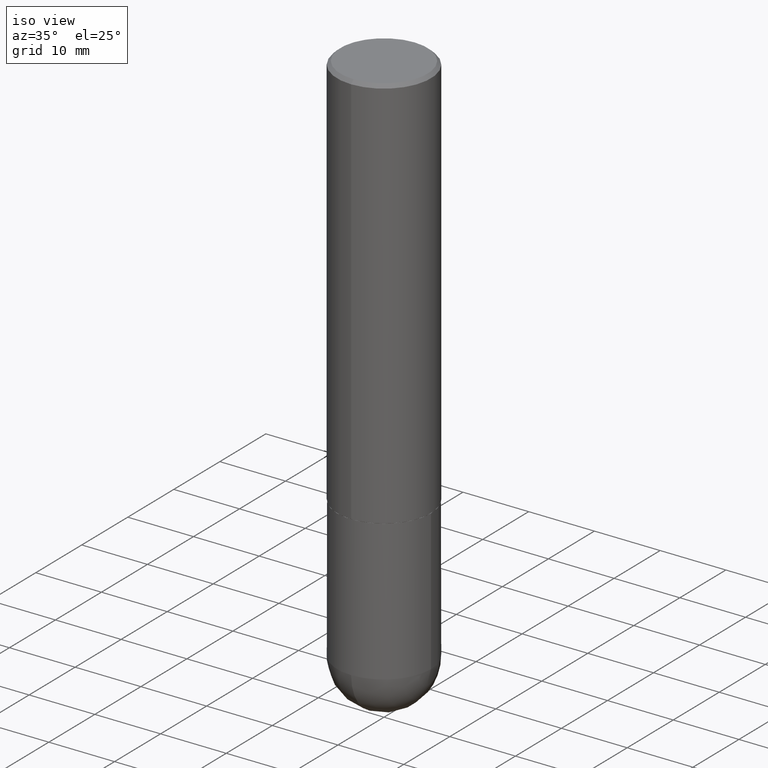
[diagram: clean part render]
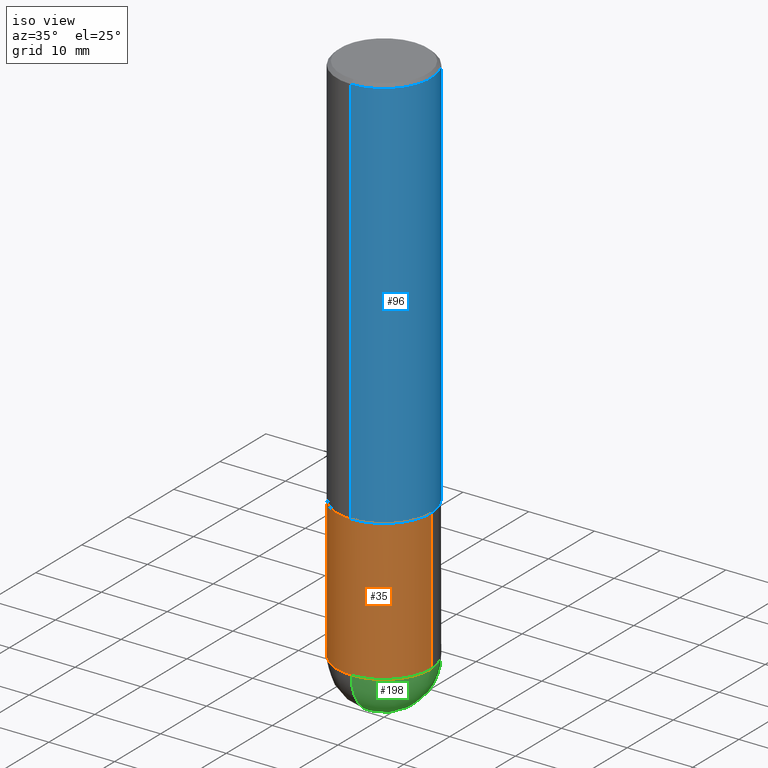
[diagram: same view with three faces highlighted in distinct colors, each labeled with its STEP entity id]
A machine part, iso view with three faces highlighted in distinct colors.
Their STEP definitions:

[orange] entity #35 — the highlighted cylindrical surface (partial cylindrical patch) has radius 7.1438 mm, axis along (-0, 0, 1).
#12 = AXIS2_PLACEMENT_3D ( 'NONE', #382, #92, #224 ) ;
#35 = ADVANCED_FACE ( 'NONE', ( #374 ), #157, .T. ) ;
#38 = CARTESIAN_POINT ( 'NONE',  ( -1.998401444325206042E-15, -0.2812500000000116573, -3.218749999999998668 ) ) ;
#57 = VERTEX_POINT ( 'NONE', #193 ) ;
#59 = DIRECTION ( 'NONE',  ( 1.000000000000000000, -6.982962677686269866E-15, 0.000000000000000000 ) ) ;
#71 = CARTESIAN_POINT ( 'NONE',  ( 0.2812500000000000000, -1.025622643285173184E-14, -2.374999999999999556 ) ) ;
#76 = VERTEX_POINT ( 'NONE', #38 ) ;
#81 = CARTESIAN_POINT ( 'NONE',  ( -0.2812500000000000555, 1.998401444325282167E-15, -1.383450494134192269E-29 ) ) ;
#92 = DIRECTION ( 'NONE',  ( -2.445468806185136597E-29, 3.491481338843145583E-15, 1.000000000000000000 ) ) ;
#95 = DIRECTION ( 'NONE',  ( 1.000000000000000000, -6.982962677686268288E-15, 0.000000000000000000 ) ) ;
#106 = EDGE_CURVE ( 'NONE', #241, #76, #294, .T. ) ;
#109 = CIRCLE ( 'NONE', #306, 0.2812500000000000000 ) ;
#110 = EDGE_CURVE ( 'NONE', #76, #57, #351, .T. ) ;
#114 = DIRECTION ( 'NONE',  ( -2.445468806185136877E-29, 3.491481338843145188E-15, 1.000000000000000000 ) ) ;
#116 = CARTESIAN_POINT ( 'NONE',  ( 0.2812500000000000555, -1.963958253099262907E-15, 1.371424718192607012E-29 ) ) ;
#122 = CARTESIAN_POINT ( 'NONE',  ( 5.807988414689698296E-29, -8.292268179752468540E-15, -2.374999999999999556 ) ) ;
#129 = CARTESIAN_POINT ( 'NONE',  ( 0.000000000000000000, 0.000000000000000000, 0.000000000000000000 ) ) ;
#133 = VECTOR ( 'NONE', #244, 39.37007874015748143 ) ;
#149 = AXIS2_PLACEMENT_3D ( 'NONE', #283, #153, #95 ) ;
#153 = DIRECTION ( 'NONE',  ( -2.445468806185136597E-29, 3.491481338843145583E-15, 1.000000000000000000 ) ) ;
#157 = CYLINDRICAL_SURFACE ( 'NONE', #245, 0.2812500000000000555 ) ;
#172 = ORIENTED_EDGE ( 'NONE', *, *, #291, .T. ) ;
#177 = DIRECTION ( 'NONE',  ( -2.445468806185136597E-29, 3.491481338843145583E-15, 1.000000000000000000 ) ) ;
#181 = ORIENTED_EDGE ( 'NONE', *, *, #106, .T. ) ;
#193 = CARTESIAN_POINT ( 'NONE',  ( 0.2812500000000000555, -1.172919512267618602E-14, -3.218749999999999556 ) ) ;
#199 = CARTESIAN_POINT ( 'NONE',  ( -0.2812500000000000555, -7.766835425251639371E-15, -3.218749999999999556 ) ) ;
#211 = VERTEX_POINT ( 'NONE', #71 ) ;
#224 = DIRECTION ( 'NONE',  ( 1.000000000000000000, -6.982962677686268288E-15, 0.000000000000000000 ) ) ;
#239 = LINE ( 'NONE', #81, #384 ) ;
#241 = VERTEX_POINT ( 'NONE', #199 ) ;
#244 = DIRECTION ( 'NONE',  ( -2.445468806185136877E-29, 3.491481338843145188E-15, 1.000000000000000000 ) ) ;
#245 = AXIS2_PLACEMENT_3D ( 'NONE', #129, #342, #247 ) ;
#247 = DIRECTION ( 'NONE',  ( 1.000000000000000000, -6.982962677686266711E-15, 4.876176775795935232E-29 ) ) ;
#262 = ORIENTED_EDGE ( 'NONE', *, *, #265, .F. ) ;
#265 = EDGE_CURVE ( 'NONE', #397, #211, #109, .T. ) ;
#270 = ORIENTED_EDGE ( 'NONE', *, *, #286, .F. ) ;
#283 = CARTESIAN_POINT ( 'NONE',  ( 7.871352719908407300E-29, -1.123820555940137375E-14, -3.218749999999999556 ) ) ;
#286 = EDGE_CURVE ( 'NONE', #241, #397, #239, .T. ) ;
#291 = EDGE_CURVE ( 'NONE', #57, #211, #330, .T. ) ;
#293 = EDGE_LOOP ( 'NONE', ( #270, #181, #399, #172, #262 ) ) ;
#294 = CIRCLE ( 'NONE', #12, 0.2812500000000000555 ) ;
#298 = CARTESIAN_POINT ( 'NONE',  ( -0.2812500000000000000, -7.766835425251637793E-15, -2.374999999999999556 ) ) ;
#306 = AXIS2_PLACEMENT_3D ( 'NONE', #122, #177, #59 ) ;
#330 = LINE ( 'NONE', #116, #133 ) ;
#342 = DIRECTION ( 'NONE',  ( -2.445468806185136597E-29, 3.491481338843145583E-15, 1.000000000000000000 ) ) ;
#351 = CIRCLE ( 'NONE', #149, 0.2812500000000000555 ) ;
#374 = FACE_OUTER_BOUND ( 'NONE', #293, .T. ) ;
#382 = CARTESIAN_POINT ( 'NONE',  ( 7.871352719908407300E-29, -1.123820555940137375E-14, -3.218749999999999556 ) ) ;
#384 = VECTOR ( 'NONE', #114, 39.37007874015748143 ) ;
#397 = VERTEX_POINT ( 'NONE', #298 ) ;
#399 = ORIENTED_EDGE ( 'NONE', *, *, #110, .T. ) ;

[blue] entity #96 — the highlighted cylindrical surface (partial cylindrical patch) has radius 7.1438 mm, axis along (-0, 0, 1).
#2 = CARTESIAN_POINT ( 'NONE',  ( 1.998401444325282167E-15, 0.2812500000000001110, -9.819798812686895501E-16 ) ) ;
#3 = EDGE_CURVE ( 'NONE', #22, #112, #256, .T. ) ;
#5 = EDGE_CURVE ( 'NONE', #404, #340, #375, .T. ) ;
#22 = VERTEX_POINT ( 'NONE', #66 ) ;
#47 = EDGE_CURVE ( 'NONE', #112, #340, #284, .T. ) ;
#54 = CARTESIAN_POINT ( 'NONE',  ( -1.963958253099263301E-15, -0.2812500000000001110, 9.819798812686895501E-16 ) ) ;
#66 = CARTESIAN_POINT ( 'NONE',  ( -1.963958253099205714E-15, -0.2812500000000085487, -2.373999999999998334 ) ) ;
#82 = AXIS2_PLACEMENT_3D ( 'NONE', #99, #349, #222 ) ;
#96 = ADVANCED_FACE ( 'NONE', ( #409 ), #253, .T. ) ;
#99 = CARTESIAN_POINT ( 'NONE',  ( 4.890933864690296280E-31, -6.982968044577367529E-17, -0.02000000000000006287 ) ) ;
#100 = VECTOR ( 'NONE', #127, 39.37007874015748143 ) ;
#112 = VERTEX_POINT ( 'NONE', #218 ) ;
#119 = CARTESIAN_POINT ( 'NONE',  ( -1.929515061873242463E-15, -0.2812500000000000555, -0.01999999999999908101 ) ) ;
#120 = ORIENTED_EDGE ( 'NONE', *, *, #5, .F. ) ;
#121 = ORIENTED_EDGE ( 'NONE', *, *, #3, .T. ) ;
#127 = DIRECTION ( 'NONE',  ( -2.445466932345140310E-29, 3.491484022288672992E-15, 1.000000000000000000 ) ) ;
#137 = AXIS2_PLACEMENT_3D ( 'NONE', #175, #295, #251 ) ;
#175 = CARTESIAN_POINT ( 'NONE',  ( 5.805538497387361922E-29, -8.288783068913306238E-15, -2.373999999999999222 ) ) ;
#180 = DIRECTION ( 'NONE',  ( -2.445466932345140310E-29, 3.491484022288672992E-15, 1.000000000000000000 ) ) ;
#195 = DIRECTION ( 'NONE',  ( -6.982962677686266711E-15, -1.000000000000000000, 3.491484022288672597E-15 ) ) ;
#201 = VECTOR ( 'NONE', #180, 39.37007874015748143 ) ;
#214 = LINE ( 'NONE', #54, #201 ) ;
#218 = CARTESIAN_POINT ( 'NONE',  ( 1.998401444325312144E-15, 0.2812499999999919509, -2.374000000000000554 ) ) ;
#222 = DIRECTION ( 'NONE',  ( -6.982962677686266711E-15, -1.000000000000000000, 3.490694658571003593E-15 ) ) ;
#234 = EDGE_LOOP ( 'NONE', ( #121, #357, #120, #393 ) ) ;
#251 = DIRECTION ( 'NONE',  ( -6.982962677686265133E-15, -1.000000000000000000, 3.885294924322504533E-15 ) ) ;
#253 = CYLINDRICAL_SURFACE ( 'NONE', #287, 0.2812500000000001110 ) ;
#256 = CIRCLE ( 'NONE', #137, 0.2812500000000002220 ) ;
#284 = LINE ( 'NONE', #2, #100 ) ;
#287 = AXIS2_PLACEMENT_3D ( 'NONE', #380, #385, #195 ) ;
#295 = DIRECTION ( 'NONE',  ( -2.445466932345140310E-29, 3.491484022288672597E-15, 1.000000000000000000 ) ) ;
#340 = VERTEX_POINT ( 'NONE', #376 ) ;
#349 = DIRECTION ( 'NONE',  ( -2.445466932345140310E-29, 3.491484022288672597E-15, 1.000000000000000000 ) ) ;
#357 = ORIENTED_EDGE ( 'NONE', *, *, #47, .T. ) ;
#375 = CIRCLE ( 'NONE', #82, 0.2812499999999999445 ) ;
#376 = CARTESIAN_POINT ( 'NONE',  ( 1.963958253099262512E-15, 0.2812499999999998890, -0.02000000000000104472 ) ) ;
#380 = CARTESIAN_POINT ( 'NONE',  ( 0.000000000000000000, 0.000000000000000000, 0.000000000000000000 ) ) ;
#385 = DIRECTION ( 'NONE',  ( -2.445466932345140310E-29, 3.491484022288672597E-15, 1.000000000000000000 ) ) ;
#393 = ORIENTED_EDGE ( 'NONE', *, *, #396, .F. ) ;
#396 = EDGE_CURVE ( 'NONE', #22, #404, #214, .T. ) ;
#404 = VERTEX_POINT ( 'NONE', #119 ) ;
#409 = FACE_OUTER_BOUND ( 'NONE', #234, .T. ) ;

[green] entity #198 — the highlighted spherical surface has radius 7.1438 mm.
#9 = AXIS2_PLACEMENT_3D ( 'NONE', #44, #387, #258 ) ;
#16 = EDGE_CURVE ( 'NONE', #57, #115, #314, .T. ) ;
#17 = ORIENTED_EDGE ( 'NONE', *, *, #216, .F. ) ;
#32 = DIRECTION ( 'NONE',  ( 1.000000000000000000, -6.982962677686268288E-15, 0.000000000000000000 ) ) ;
#38 = CARTESIAN_POINT ( 'NONE',  ( -1.998401444325206042E-15, -0.2812500000000116573, -3.218749999999998668 ) ) ;
#44 = CARTESIAN_POINT ( 'NONE',  ( 7.540232941994521053E-29, -1.171238792754142562E-14, -3.218749999999999556 ) ) ;
#57 = VERTEX_POINT ( 'NONE', #193 ) ;
#62 = CARTESIAN_POINT ( 'NONE',  ( 8.240046819675677659E-29, -1.267714545847805119E-14, -3.500000000000000000 ) ) ;
#76 = VERTEX_POINT ( 'NONE', #38 ) ;
#85 = VERTEX_POINT ( 'NONE', #62 ) ;
#87 = ORIENTED_EDGE ( 'NONE', *, *, #110, .F. ) ;
#89 = EDGE_CURVE ( 'NONE', #85, #115, #236, .T. ) ;
#95 = DIRECTION ( 'NONE',  ( 1.000000000000000000, -6.982962677686268288E-15, 0.000000000000000000 ) ) ;
#103 = SPHERICAL_SURFACE ( 'NONE', #9, 0.2812500000000003331 ) ;
#110 = EDGE_CURVE ( 'NONE', #76, #57, #351, .T. ) ;
#115 = VERTEX_POINT ( 'NONE', #407 ) ;
#126 = AXIS2_PLACEMENT_3D ( 'NONE', #250, #278, #131 ) ;
#131 = DIRECTION ( 'NONE',  ( 6.982962677686265133E-15, 1.000000000000000000, 0.000000000000000000 ) ) ;
#135 = FACE_OUTER_BOUND ( 'NONE', #266, .T. ) ;
#149 = AXIS2_PLACEMENT_3D ( 'NONE', #283, #153, #95 ) ;
#153 = DIRECTION ( 'NONE',  ( -2.445468806185136597E-29, 3.491481338843145583E-15, 1.000000000000000000 ) ) ;
#193 = CARTESIAN_POINT ( 'NONE',  ( 0.2812500000000000555, -1.172919512267618602E-14, -3.218749999999999556 ) ) ;
#198 = ADVANCED_FACE ( 'NONE', ( #135 ), #103, .T. ) ;
#204 = ORIENTED_EDGE ( 'NONE', *, *, #16, .F. ) ;
#216 = EDGE_CURVE ( 'NONE', #85, #76, #226, .T. ) ;
#226 = CIRCLE ( 'NONE', #272, 0.2812500000000003331 ) ;
#236 = CIRCLE ( 'NONE', #126, 0.2812500000000003331 ) ;
#250 = CARTESIAN_POINT ( 'NONE',  ( 7.540232941994521053E-29, -1.171238792754142562E-14, -3.218749999999999556 ) ) ;
#258 = DIRECTION ( 'NONE',  ( 6.982962677686265922E-15, 1.000000000000000000, -3.885294924322502955E-15 ) ) ;
#260 = CARTESIAN_POINT ( 'NONE',  ( 7.540232941994521053E-29, -1.171238792754142562E-14, -3.218749999999999556 ) ) ;
#266 = EDGE_LOOP ( 'NONE', ( #17, #394, #204, #87 ) ) ;
#272 = AXIS2_PLACEMENT_3D ( 'NONE', #260, #354, #319 ) ;
#278 = DIRECTION ( 'NONE',  ( 1.000000000000000000, -6.982962677686265922E-15, 4.883557194083112340E-29 ) ) ;
#283 = CARTESIAN_POINT ( 'NONE',  ( 7.871352719908407300E-29, -1.123820555940137375E-14, -3.218749999999999556 ) ) ;
#314 = CIRCLE ( 'NONE', #347, 0.2812500000000000555 ) ;
#316 = DIRECTION ( 'NONE',  ( -2.445468806185136597E-29, 3.491481338843145583E-15, 1.000000000000000000 ) ) ;
#319 = DIRECTION ( 'NONE',  ( -7.105427357601001859E-15, -1.000000000000000000, 0.000000000000000000 ) ) ;
#347 = AXIS2_PLACEMENT_3D ( 'NONE', #383, #316, #32 ) ;
#351 = CIRCLE ( 'NONE', #149, 0.2812500000000000555 ) ;
#354 = DIRECTION ( 'NONE',  ( -1.000000000000000000, 7.105427357601001070E-15, -4.926315508542082329E-29 ) ) ;
#383 = CARTESIAN_POINT ( 'NONE',  ( 7.871352719908407300E-29, -1.123820555940137375E-14, -3.218749999999999556 ) ) ;
#387 = DIRECTION ( 'NONE',  ( -1.000000000000000000, 6.982962677686265922E-15, -4.883557194083112901E-29 ) ) ;
#394 = ORIENTED_EDGE ( 'NONE', *, *, #89, .T. ) ;
#407 = CARTESIAN_POINT ( 'NONE',  ( 1.963958253099340610E-15, 0.2812499999999886757, -3.218750000000000888 ) ) ;